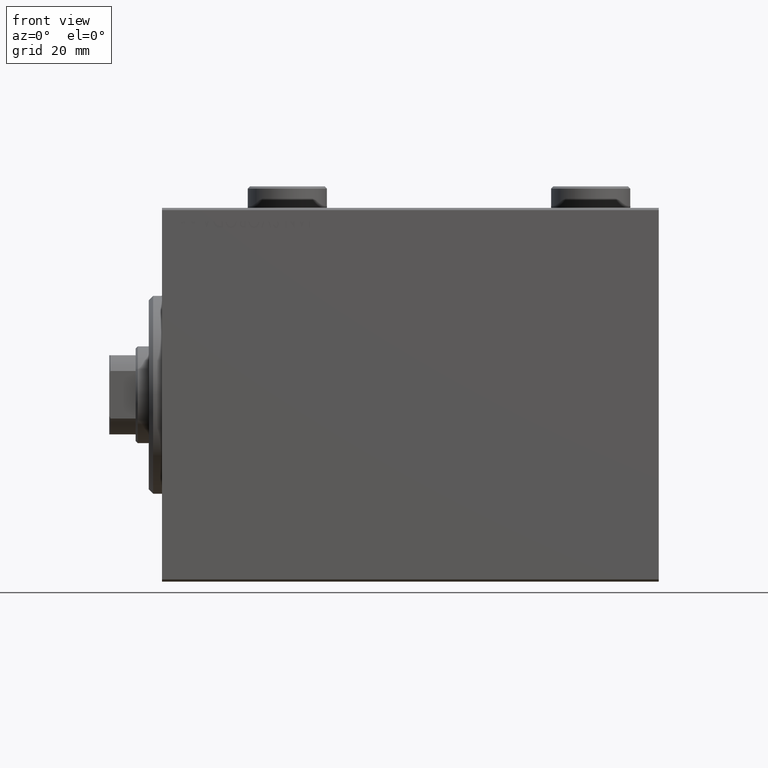
[diagram: clean part render]
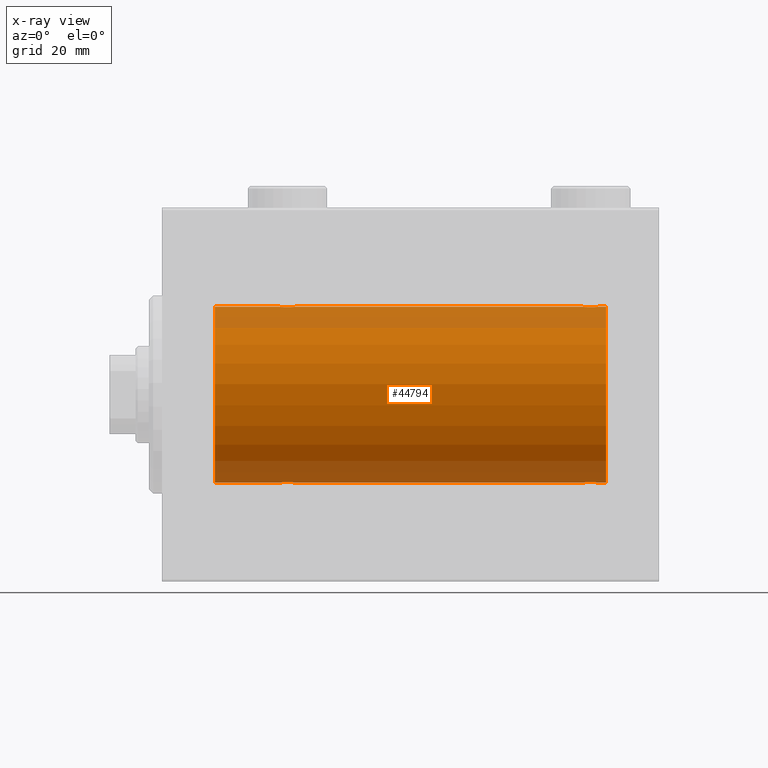
[diagram: x-ray — body ghosted, one internal face saturated and labeled with its STEP entity id]
A machine part, front view, then the same camera in x-ray: the body is ghosted and one INTERNAL B-rep face — a face not visible from any outside direction — is saturated and labeled: STEP entity #44794.
In plain terms, the highlighted cylindrical surface (partial cylindrical patch) has radius 20 mm, axis along (-1, -0, -0).
Its self-contained STEP definition (entity closure, byte-faithful):
#22 = CARTESIAN_POINT ( 'NONE',  ( 99.50000000000000000, 2.449293582762473501E-15, -20.00000000000000000 ) ) ;
#229 = CARTESIAN_POINT ( 'NONE',  ( 26.90225308445269903, -1.230936344679278260, -19.96293863536309132 ) ) ;
#462 = CARTESIAN_POINT ( 'NONE',  ( 30.50000000000000000, 2.449293582768389958E-15, -20.00000000000000000 ) ) ;
#695 = CARTESIAN_POINT ( 'NONE',  ( 28.63365196142448355, -1.999898234284062992, -19.89975896996866211 ) ) ;
#909 = CARTESIAN_POINT ( 'NONE',  ( 27.61420923329272981, -1.797933656607917596, -19.91908554465558367 ) ) ;
#975 = CARTESIAN_POINT ( 'NONE',  ( 101.0000000000000000, 2.449293598294706513E-15, -20.00000000000000000 ) ) ;
#1464 = LINE ( 'NONE', #11155, #35115 ) ;
#1502 = CARTESIAN_POINT ( 'NONE',  ( 99.50000000000000000, 9.984436361108698300E-16, 20.00000000000000000 ) ) ;
#1629 = CARTESIAN_POINT ( 'NONE',  ( 101.0000000000000000, 0.000000000000000000, 0.000000000000000000 ) ) ;
#1729 = CARTESIAN_POINT ( 'NONE',  ( 99.44679484191794927, -0.5270924491156651071, 19.99450181871975829 ) ) ;
#1742 = CYLINDRICAL_SURFACE ( 'NONE', #36111, 20.00000000000000000 ) ;
#1784 = CARTESIAN_POINT ( 'NONE',  ( 95.50000000000000000, -1.207436508668459186E-14, -20.00000000000000000 ) ) ;
#1834 = CARTESIAN_POINT ( 'NONE',  ( 29.71805419472152110, -1.591668229360196252, 19.93669678979812332 ) ) ;
#2010 = DIRECTION ( 'NONE',  ( -1.000000000000000000, -0.000000000000000000, -0.000000000000000000 ) ) ;
#2021 = CARTESIAN_POINT ( 'NONE',  ( 96.98351467081093347, -1.936551476643015191, -19.90603968831098669 ) ) ;
#2244 = CARTESIAN_POINT ( 'NONE',  ( 96.28194580527851087, -1.591668229360199804, -19.93669678979812687 ) ) ;
#2251 = CARTESIAN_POINT ( 'NONE',  ( 11.99999999999999645, 0.000000000000000000, 0.000000000000000000 ) ) ;
#2455 = CARTESIAN_POINT ( 'NONE',  ( 98.14630673924646942, -1.897222639860602245, -19.90987429971496425 ) ) ;
#3133 = CARTESIAN_POINT ( 'NONE',  ( 99.50000000000000000, 9.984436361108698300E-16, 20.00000000000000000 ) ) ;
#3146 = EDGE_CURVE ( 'NONE', #9792, #35832, #29102, .T. ) ;
#4135 = CARTESIAN_POINT ( 'NONE',  ( 28.76358144091416236, -1.986835489085814199, -19.90108393514801222 ) ) ;
#4358 = CARTESIAN_POINT ( 'NONE',  ( 29.82306668919470383, -1.505486175075772870, -19.94347168299867334 ) ) ;
#5273 = CARTESIAN_POINT ( 'NONE',  ( 101.0000000000000000, 0.000000000000000000, 20.00000000000000000 ) ) ;
#5633 = VECTOR ( 'NONE', #31208, 1000.000000000000000 ) ;
#5650 = CARTESIAN_POINT ( 'NONE',  ( 101.0000000000000000, 0.000000000000000000, 0.000000000000000000 ) ) ;
#5692 = CARTESIAN_POINT ( 'NONE',  ( 99.49999999999998579, -0.2610801504281911045, -19.99999999999999645 ) ) ;
#5735 = CARTESIAN_POINT ( 'NONE',  ( 30.09774691554730097, -1.230936344679278482, 19.96293863536309132 ) ) ;
#5961 = CARTESIAN_POINT ( 'NONE',  ( 29.50067219139244656, -1.736582545981375292, 19.92459705242981371 ) ) ;
#6288 = VERTEX_POINT ( 'NONE', #975 ) ;
#7135 = CARTESIAN_POINT ( 'NONE',  ( 26.55320515808203297, -0.5270924491156698810, -19.99450181871976184 ) ) ;
#7356 = AXIS2_PLACEMENT_3D ( 'NONE', #2251, #20220, #7454 ) ;
#7454 = DIRECTION ( 'NONE',  ( 0.000000000000000000, 0.000000000000000000, 1.000000000000000000 ) ) ;
#7585 = CARTESIAN_POINT ( 'NONE',  ( 29.72028945794465571, -1.589957321664208223, -19.93683391378736047 ) ) ;
#8077 = DIRECTION ( 'NONE',  ( 0.000000000000000000, 0.000000000000000000, 1.000000000000000000 ) ) ;
#8500 = CARTESIAN_POINT ( 'NONE',  ( 27.98076487864722495, -1.935816449315125087, 19.90611141657401362 ) ) ;
#8631 = CARTESIAN_POINT ( 'NONE',  ( 98.50067219139243946, -1.736582545981368852, 19.92459705242980661 ) ) ;
#8689 = CARTESIAN_POINT ( 'NONE',  ( 95.75313023696931225, -1.008108445278694587, -19.97602680192586888 ) ) ;
#8701 = CARTESIAN_POINT ( 'NONE',  ( 30.50000000000000000, 2.449293582768389958E-15, -20.00000000000000000 ) ) ;
#8726 = LINE ( 'NONE', #5273, #42598 ) ;
#8862 = CARTESIAN_POINT ( 'NONE',  ( 98.71805419472153176, -1.591668229360190034, 19.93669678979813042 ) ) ;
#8920 = CARTESIAN_POINT ( 'NONE',  ( 99.44755062882506991, -0.5243189001514980685, -19.99457699142850231 ) ) ;
#8959 = CARTESIAN_POINT ( 'NONE',  ( 27.85369326075355545, -1.897222639860597360, 19.90987429971497491 ) ) ;
#9220 = VERTEX_POINT ( 'NONE', #22 ) ;
#9303 = EDGE_CURVE ( 'NONE', #32744, #35832, #19862, .T. ) ;
#9306 = CARTESIAN_POINT ( 'NONE',  ( 97.23641855908584830, -1.986835489085812867, 19.90108393514801577 ) ) ;
#9409 = CARTESIAN_POINT ( 'NONE',  ( 29.38579076670729151, -1.797933656607919817, 19.91908554465558367 ) ) ;
#9792 = VERTEX_POINT ( 'NONE', #16515 ) ;
#10083 = B_SPLINE_CURVE_WITH_KNOTS ( 'NONE', 3,
 ( #43737, #5692, #8920, #44414, #30158, #23228, #12625, #12163, #33378, #2455, #12837, #19994, #19079, #16306, #34059, #2021, #30375, #26700, #26242, #2244, #23003, #40292, #8689, #33150, #40053, #1784 ),
 .UNSPECIFIED., .F., .F.,
 ( 4, 2, 2, 2, 2, 2, 2, 2, 2, 2, 2, 2, 4 ),
 ( 0.006256819553329824070, 0.007038738568778795009, 0.007820657584227765080, 0.008211617091952250549, 0.008602576599676736019, 0.008993536107401221488, 0.009384495615125706958, 0.009775455122850190692, 0.01016641463057467790, 0.01055737413829916163, 0.01094833364602364884, 0.01173025266147261630, 0.01251217167692158724 ),
 .UNSPECIFIED. ) ;
#10127 = EDGE_CURVE ( 'NONE', #29195, #25425, #34221, .T. ) ;
#11054 = CARTESIAN_POINT ( 'NONE',  ( 30.24825913460018612, -1.005710574260838985, -19.97614991974274190 ) ) ;
#11155 = CARTESIAN_POINT ( 'NONE',  ( 101.0000000000000000, 2.449293598294706513E-15, -20.00000000000000000 ) ) ;
#11875 = CARTESIAN_POINT ( 'NONE',  ( 98.01648532918906653, -1.936551476643001202, 19.90603968831098669 ) ) ;
#12001 = DIRECTION ( 'NONE',  ( -1.000000000000000000, 0.000000000000000000, 0.000000000000000000 ) ) ;
#12163 = CARTESIAN_POINT ( 'NONE',  ( 98.50306556339604924, -1.735203193119900122, -19.92471783160911158 ) ) ;
#12165 = ORIENTED_EDGE ( 'NONE', *, *, #45140, .F. ) ;
#12341 = CARTESIAN_POINT ( 'NONE',  ( 95.55244937117491588, -0.5243189001515019543, 19.99457699142849876 ) ) ;
#12565 = CARTESIAN_POINT ( 'NONE',  ( 99.09774691554729031, -1.230936344679272043, 19.96293863536309487 ) ) ;
#12625 = CARTESIAN_POINT ( 'NONE',  ( 98.72028945794467347, -1.589957321664213330, -19.93683391378736758 ) ) ;
#12665 = CARTESIAN_POINT ( 'NONE',  ( 30.44679484191797414, -0.5270924491156706582, 19.99450181871975829 ) ) ;
#12837 = CARTESIAN_POINT ( 'NONE',  ( 98.01923512135277861, -1.935816449315129750, -19.90611141657401362 ) ) ;
#12885 = CARTESIAN_POINT ( 'NONE',  ( 30.49999999999999289, -0.2644051013330969702, 20.00000000000000711 ) ) ;
#13848 = EDGE_CURVE ( 'NONE', #32744, #21257, #8726, .T. ) ;
#14292 = CARTESIAN_POINT ( 'NONE',  ( 26.50000000000000355, -3.809869420541414000E-15, -20.00000000000000000 ) ) ;
#14478 = EDGE_CURVE ( 'NONE', #6288, #9220, #27831, .T. ) ;
#14659 = B_SPLINE_CURVE_WITH_KNOTS ( 'NONE', 3,
 ( #462, #39187, #42644, #11054, #29044, #4358, #7585, #21215, #38724, #21668, #32279, #4135, #695, #14752, #24674, #18426, #28372, #909, #28832, #32049, #31822, #229, #32503, #7135, #25137, #14292 ),
 .UNSPECIFIED., .F., .F.,
 ( 4, 2, 2, 2, 2, 2, 2, 2, 2, 2, 2, 2, 4 ),
 ( 0.006256819553329842284, 0.007038738568778818427, 0.007820657584227792836, 0.008211617091952278305, 0.008602576599676762040, 0.008993536107401245774, 0.009384495615125729509, 0.009775455122850213244, 0.01016641463057469871, 0.01055737413829918071, 0.01094833364602366618, 0.01173025266147263365, 0.01251217167692159939 ),
 .UNSPECIFIED. ) ;
#14752 = CARTESIAN_POINT ( 'NONE',  ( 28.36941128289166159, -2.000100592782553921, -19.89973863218036598 ) ) ;
#15342 = CARTESIAN_POINT ( 'NONE',  ( 95.50000000000000000, -1.553188236289650144E-23, 20.00000000000000000 ) ) ;
#15454 = EDGE_CURVE ( 'NONE', #34003, #21257, #36107, .T. ) ;
#15898 = CARTESIAN_POINT ( 'NONE',  ( 28.23641855908585541, -1.986835489085814643, 19.90108393514801222 ) ) ;
#15946 = ORIENTED_EDGE ( 'NONE', *, *, #13848, .F. ) ;
#16126 = CARTESIAN_POINT ( 'NONE',  ( 26.90058475115969827, -1.228758402364236391, 19.96307487248084556 ) ) ;
#16306 = CARTESIAN_POINT ( 'NONE',  ( 97.36941128289166159, -2.000100592782561471, -19.89973863218036243 ) ) ;
#16346 = CARTESIAN_POINT ( 'NONE',  ( 29.01648532918905943, -1.936551476643006753, 19.90603968831098669 ) ) ;
#16510 = LINE ( 'NONE', #37277, #43947 ) ;
#16515 = CARTESIAN_POINT ( 'NONE',  ( 95.50000000000000000, -1.553188236289650144E-23, 20.00000000000000000 ) ) ;
#17138 = CARTESIAN_POINT ( 'NONE',  ( 101.0000000000000000, 0.000000000000000000, 20.00000000000000000 ) ) ;
#18426 = CARTESIAN_POINT ( 'NONE',  ( 27.98351467081095123, -1.936551476643005198, -19.90603968831098314 ) ) ;
#18624 = CARTESIAN_POINT ( 'NONE',  ( 26.50000000000000355, -3.809869420541414000E-15, -20.00000000000000000 ) ) ;
#18739 = VECTOR ( 'NONE', #25411, 1000.000000000000000 ) ;
#18792 = CARTESIAN_POINT ( 'NONE',  ( 97.63058871710833841, -2.000100592782551256, 19.89973863218035888 ) ) ;
#19079 = CARTESIAN_POINT ( 'NONE',  ( 97.63365196142450486, -1.999898234284069432, -19.89975896996866211 ) ) ;
#19150 = CIRCLE ( 'NONE', #44902, 20.00000000000000000 ) ;
#19354 = CARTESIAN_POINT ( 'NONE',  ( 28.76077256031567586, -1.987205673487810298, 19.90104673894210663 ) ) ;
#19481 = CARTESIAN_POINT ( 'NONE',  ( 96.98076487864724982, -1.935816449315123977, 19.90611141657402072 ) ) ;
#19587 = CARTESIAN_POINT ( 'NONE',  ( 27.27971054205535850, -1.589957321664211998, 19.93683391378736047 ) ) ;
#19813 = CARTESIAN_POINT ( 'NONE',  ( 30.50000000000000000, -4.014971335008767791E-15, 20.00000000000000000 ) ) ;
#19862 = B_SPLINE_CURVE_WITH_KNOTS ( 'NONE', 3,
 ( #41009, #44242, #20036, #40564, #16126, #34103, #19587, #37551, #33658, #8959, #8500, #15898, #44018, #23270, #19354, #16346, #37331, #9409, #5961, #1834, #36660, #5735, #40339, #12665, #12885, #19813 ),
 .UNSPECIFIED., .F., .F.,
 ( 4, 2, 2, 2, 2, 2, 2, 2, 2, 2, 2, 2, 4 ),
 ( 0.006256819553329811059, 0.007038738568778783733, 0.007820657584227756406, 0.008211617091952238406, 0.008602576599676722141, 0.008993536107401204141, 0.009384495615125686141, 0.009775455122850168141, 0.01016641463057465014, 0.01055737413829913214, 0.01094833364602361414, 0.01173025266147257814, 0.01251217167692154214 ),
 .UNSPECIFIED. ) ;
#19994 = CARTESIAN_POINT ( 'NONE',  ( 97.76358144091416591, -1.986835489085820639, -19.90108393514801222 ) ) ;
#20036 = CARTESIAN_POINT ( 'NONE',  ( 26.55244937117492299, -0.5243189001515023984, 19.99457699142850586 ) ) ;
#20048 = ORIENTED_EDGE ( 'NONE', *, *, #26680, .T. ) ;
#20220 = DIRECTION ( 'NONE',  ( -1.000000000000000000, 0.000000000000000000, 0.000000000000000000 ) ) ;
#20326 = EDGE_CURVE ( 'NONE', #9220, #35760, #10083, .T. ) ;
#21123 = DIRECTION ( 'NONE',  ( -1.000000000000000000, -0.000000000000000000, -0.000000000000000000 ) ) ;
#21215 = CARTESIAN_POINT ( 'NONE',  ( 29.50306556339602437, -1.735203193119894349, -19.92471783160910803 ) ) ;
#21257 = VERTEX_POINT ( 'NONE', #42842 ) ;
#21668 = CARTESIAN_POINT ( 'NONE',  ( 29.14630673924643744, -1.897222639860594029, -19.90987429971496780 ) ) ;
#21978 = VECTOR ( 'NONE', #21123, 1000.000000000000000 ) ;
#22446 = DIRECTION ( 'NONE',  ( -1.000000000000000000, -0.000000000000000000, -0.000000000000000000 ) ) ;
#22485 = CARTESIAN_POINT ( 'NONE',  ( 99.24686976303073038, -1.008108445278681931, 19.97602680192586178 ) ) ;
#23003 = CARTESIAN_POINT ( 'NONE',  ( 96.17903093152715144, -1.507328959728500006, -19.94333197382386302 ) ) ;
#23228 = CARTESIAN_POINT ( 'NONE',  ( 98.82306668919471804, -1.505486175075774646, -19.94347168299867334 ) ) ;
#23270 = CARTESIAN_POINT ( 'NONE',  ( 28.63058871710834552, -2.000100592782553921, 19.89973863218035888 ) ) ;
#23316 = ORIENTED_EDGE ( 'NONE', *, *, #3146, .F. ) ;
#23769 = EDGE_LOOP ( 'NONE', ( #12165, #44738, #44952, #24185, #35600, #20048, #42250, #15946, #40823, #23316, #36192, #28270 ) ) ;
#24185 = ORIENTED_EDGE ( 'NONE', *, *, #28281, .T. ) ;
#24674 = CARTESIAN_POINT ( 'NONE',  ( 28.23922743968432059, -1.987205673487808966, -19.90104673894211018 ) ) ;
#25137 = CARTESIAN_POINT ( 'NONE',  ( 26.50000000000001066, -0.2644051013331030209, -20.00000000000000355 ) ) ;
#25411 = DIRECTION ( 'NONE',  ( -1.000000000000000000, -0.000000000000000000, -0.000000000000000000 ) ) ;
#25425 = VERTEX_POINT ( 'NONE', #3133 ) ;
#26178 = CARTESIAN_POINT ( 'NONE',  ( 95.50000000000001421, -0.2610801504281927699, 20.00000000000000355 ) ) ;
#26242 = CARTESIAN_POINT ( 'NONE',  ( 96.49932780860756054, -1.736582545981379289, -19.92459705242981016 ) ) ;
#26680 = EDGE_CURVE ( 'NONE', #42123, #34003, #1464, .T. ) ;
#26700 = CARTESIAN_POINT ( 'NONE',  ( 96.61420923329271204, -1.797933656607926700, -19.91908554465557302 ) ) ;
#26733 = DIRECTION ( 'NONE',  ( -1.000000000000000000, -0.000000000000000000, -0.000000000000000000 ) ) ;
#26864 = CARTESIAN_POINT ( 'NONE',  ( 96.49693443660399339, -1.735203193119890352, 19.92471783160910803 ) ) ;
#26883 = DIRECTION ( 'NONE',  ( 0.000000000000000000, 0.000000000000000000, 1.000000000000000000 ) ) ;
#27831 = LINE ( 'NONE', #28058, #21978 ) ;
#28058 = CARTESIAN_POINT ( 'NONE',  ( 101.0000000000000000, 2.449293598294706513E-15, -20.00000000000000000 ) ) ;
#28270 = ORIENTED_EDGE ( 'NONE', *, *, #10127, .F. ) ;
#28281 = EDGE_CURVE ( 'NONE', #35760, #35688, #16510, .T. ) ;
#28372 = CARTESIAN_POINT ( 'NONE',  ( 27.85651471266959334, -1.898187925611338533, -19.90978194174746818 ) ) ;
#28832 = CARTESIAN_POINT ( 'NONE',  ( 27.49932780860757475, -1.736582545981376180, -19.92459705242981371 ) ) ;
#29044 = CARTESIAN_POINT ( 'NONE',  ( 30.09941524884030173, -1.228758402364235502, -19.96307487248084911 ) ) ;
#29102 = LINE ( 'NONE', #29329, #18739 ) ;
#29195 = VERTEX_POINT ( 'NONE', #38982 ) ;
#29329 = CARTESIAN_POINT ( 'NONE',  ( 101.0000000000000000, 0.000000000000000000, 20.00000000000000000 ) ) ;
#30114 = FACE_OUTER_BOUND ( 'NONE', #23769, .T. ) ;
#30158 = CARTESIAN_POINT ( 'NONE',  ( 99.09941524884030173, -1.228758402364235724, -19.96307487248084556 ) ) ;
#30335 = DIRECTION ( 'NONE',  ( -1.000000000000000000, -0.000000000000000000, -0.000000000000000000 ) ) ;
#30361 = EDGE_CURVE ( 'NONE', #9792, #25425, #36959, .T. ) ;
#30375 = CARTESIAN_POINT ( 'NONE',  ( 96.85651471266960755, -1.898187925611348081, -19.90978194174746818 ) ) ;
#30386 = CARTESIAN_POINT ( 'NONE',  ( 30.50000000000000000, -4.014971335008767791E-15, 20.00000000000000000 ) ) ;
#31208 = DIRECTION ( 'NONE',  ( -1.000000000000000000, -0.000000000000000000, -0.000000000000000000 ) ) ;
#31822 = CARTESIAN_POINT ( 'NONE',  ( 27.17903093152710525, -1.507328959728492457, -19.94333197382385592 ) ) ;
#32049 = CARTESIAN_POINT ( 'NONE',  ( 27.28194580527848601, -1.591668229360197140, -19.93669678979812332 ) ) ;
#32279 = CARTESIAN_POINT ( 'NONE',  ( 29.01923512135276795, -1.935816449315124643, -19.90611141657401717 ) ) ;
#32503 = CARTESIAN_POINT ( 'NONE',  ( 26.75313023696928738, -1.008108445278687704, -19.97602680192586533 ) ) ;
#32744 = VERTEX_POINT ( 'NONE', #40521 ) ;
#32931 = CARTESIAN_POINT ( 'NONE',  ( 95.50000000000000000, -1.207436508668459186E-14, -20.00000000000000000 ) ) ;
#33092 = CARTESIAN_POINT ( 'NONE',  ( 98.14348528733043509, -1.898187925611334315, 19.90978194174746818 ) ) ;
#33150 = CARTESIAN_POINT ( 'NONE',  ( 95.55320515808205073, -0.5270924491156777636, -19.99450181871976540 ) ) ;
#33324 = CARTESIAN_POINT ( 'NONE',  ( 98.82096906847290541, -1.507328959728488238, 19.94333197382385947 ) ) ;
#33378 = CARTESIAN_POINT ( 'NONE',  ( 98.38829437207090223, -1.796691196322323103, -19.91919800395357143 ) ) ;
#33552 = CARTESIAN_POINT ( 'NONE',  ( 98.38579076670728796, -1.797933656607910713, 19.91908554465557657 ) ) ;
#33658 = CARTESIAN_POINT ( 'NONE',  ( 27.61170562792909422, -1.796691196322319994, 19.91919800395357143 ) ) ;
#34003 = VERTEX_POINT ( 'NONE', #38714 ) ;
#34059 = CARTESIAN_POINT ( 'NONE',  ( 97.23922743968432769, -1.987205673487818514, -19.90104673894210663 ) ) ;
#34103 = CARTESIAN_POINT ( 'NONE',  ( 27.17693331080528907, -1.505486175075773758, 19.94347168299867690 ) ) ;
#34221 = LINE ( 'NONE', #17138, #5633 ) ;
#34686 = EDGE_CURVE ( 'NONE', #35688, #42123, #14659, .T. ) ;
#35115 = VECTOR ( 'NONE', #22446, 1000.000000000000000 ) ;
#35600 = ORIENTED_EDGE ( 'NONE', *, *, #34686, .T. ) ;
#35688 = VERTEX_POINT ( 'NONE', #8701 ) ;
#35760 = VERTEX_POINT ( 'NONE', #32931 ) ;
#35832 = VERTEX_POINT ( 'NONE', #30386 ) ;
#36107 = CIRCLE ( 'NONE', #7356, 20.00000000000000000 ) ;
#36111 = AXIS2_PLACEMENT_3D ( 'NONE', #5650, #30335, #26883 ) ;
#36192 = ORIENTED_EDGE ( 'NONE', *, *, #30361, .T. ) ;
#36321 = CARTESIAN_POINT ( 'NONE',  ( 97.36634803857555198, -1.999898234284061216, 19.89975896996866922 ) ) ;
#36557 = CARTESIAN_POINT ( 'NONE',  ( 96.27971054205538337, -1.589957321664204448, 19.93683391378736403 ) ) ;
#36660 = CARTESIAN_POINT ( 'NONE',  ( 29.82096906847289119, -1.507328959728493567, 19.94333197382385592 ) ) ;
#36959 = B_SPLINE_CURVE_WITH_KNOTS ( 'NONE', 3,
 ( #15342, #26178, #12341, #43913, #40462, #39998, #36557, #26864, #40234, #40904, #19481, #9306, #36321, #18792, #43458, #11875, #33092, #33552, #8631, #8862, #33324, #12565, #22485, #1729, #40683, #1502 ),
 .UNSPECIFIED., .F., .F.,
 ( 4, 2, 2, 2, 2, 2, 2, 2, 2, 2, 2, 2, 4 ),
 ( 0.006256819553329836213, 0.007038738568778784600, 0.007820657584227733855, 0.008211617091952222794, 0.008602576599676711733, 0.008993536107401198937, 0.009384495615125687876, 0.009775455122850176815, 0.01016641463057466402, 0.01055737413829915296, 0.01094833364602364190, 0.01173025266147261630, 0.01251217167692159418 ),
 .UNSPECIFIED. ) ;
#37277 = CARTESIAN_POINT ( 'NONE',  ( 101.0000000000000000, 2.449293598294706513E-15, -20.00000000000000000 ) ) ;
#37331 = CARTESIAN_POINT ( 'NONE',  ( 29.14348528733041377, -1.898187925611340088, 19.90978194174746818 ) ) ;
#37551 = CARTESIAN_POINT ( 'NONE',  ( 27.49693443660397918, -1.735203193119897902, 19.92471783160911158 ) ) ;
#38714 = CARTESIAN_POINT ( 'NONE',  ( 11.99999999999999645, 2.449293598294706513E-15, -20.00000000000000000 ) ) ;
#38724 = CARTESIAN_POINT ( 'NONE',  ( 29.38829437207091999, -1.796691196322316664, -19.91919800395357143 ) ) ;
#38982 = CARTESIAN_POINT ( 'NONE',  ( 101.0000000000000000, 0.000000000000000000, 20.00000000000000000 ) ) ;
#39187 = CARTESIAN_POINT ( 'NONE',  ( 30.49999999999999645, -0.2610801504281900498, -19.99999999999999645 ) ) ;
#39998 = CARTESIAN_POINT ( 'NONE',  ( 96.17693331080533881, -1.505486175075777311, 19.94347168299868045 ) ) ;
#40053 = CARTESIAN_POINT ( 'NONE',  ( 95.50000000000002842, -0.2644051013331136790, -20.00000000000000355 ) ) ;
#40234 = CARTESIAN_POINT ( 'NONE',  ( 96.61170562792906935, -1.796691196322320216, 19.91919800395356788 ) ) ;
#40292 = CARTESIAN_POINT ( 'NONE',  ( 95.90225308445270969, -1.230936344679285144, -19.96293863536309843 ) ) ;
#40339 = CARTESIAN_POINT ( 'NONE',  ( 30.24686976303072328, -1.008108445278687926, 19.97602680192586888 ) ) ;
#40462 = CARTESIAN_POINT ( 'NONE',  ( 95.90058475115969827, -1.228758402364240609, 19.96307487248084911 ) ) ;
#40521 = CARTESIAN_POINT ( 'NONE',  ( 26.50000000000000355, -1.552596590610734385E-23, 20.00000000000000000 ) ) ;
#40564 = CARTESIAN_POINT ( 'NONE',  ( 26.75174086539981033, -1.005710574260841206, 19.97614991974274190 ) ) ;
#40683 = CARTESIAN_POINT ( 'NONE',  ( 99.50000000000000000, -0.2644051013330985245, 19.99999999999999645 ) ) ;
#40823 = ORIENTED_EDGE ( 'NONE', *, *, #9303, .T. ) ;
#40904 = CARTESIAN_POINT ( 'NONE',  ( 96.85369326075360163, -1.897222639860597360, 19.90987429971497491 ) ) ;
#41009 = CARTESIAN_POINT ( 'NONE',  ( 26.50000000000000355, -1.552596590610734385E-23, 20.00000000000000000 ) ) ;
#42123 = VERTEX_POINT ( 'NONE', #18624 ) ;
#42250 = ORIENTED_EDGE ( 'NONE', *, *, #15454, .T. ) ;
#42598 = VECTOR ( 'NONE', #26733, 1000.000000000000000 ) ;
#42644 = CARTESIAN_POINT ( 'NONE',  ( 30.44755062882508412, -0.5243189001514996228, -19.99457699142849876 ) ) ;
#42842 = CARTESIAN_POINT ( 'NONE',  ( 11.99999999999999645, 0.000000000000000000, 20.00000000000000000 ) ) ;
#43458 = CARTESIAN_POINT ( 'NONE',  ( 97.76077256031565810, -1.987205673487806967, 19.90104673894210663 ) ) ;
#43737 = CARTESIAN_POINT ( 'NONE',  ( 99.50000000000000000, 2.449293582762473501E-15, -20.00000000000000000 ) ) ;
#43913 = CARTESIAN_POINT ( 'NONE',  ( 95.75174086539981033, -1.005710574260841872, 19.97614991974274190 ) ) ;
#43947 = VECTOR ( 'NONE', #2010, 1000.000000000000000 ) ;
#44018 = CARTESIAN_POINT ( 'NONE',  ( 28.36634803857552001, -1.999898234284063436, 19.89975896996866211 ) ) ;
#44242 = CARTESIAN_POINT ( 'NONE',  ( 26.50000000000000711, -0.2610801504281929919, 20.00000000000000000 ) ) ;
#44414 = CARTESIAN_POINT ( 'NONE',  ( 99.24825913460016125, -1.005710574260839651, -19.97614991974274901 ) ) ;
#44738 = ORIENTED_EDGE ( 'NONE', *, *, #14478, .T. ) ;
#44794 = ADVANCED_FACE ( 'NONE', ( #30114 ), #1742, .F. ) ;
#44902 = AXIS2_PLACEMENT_3D ( 'NONE', #1629, #12001, #8077 ) ;
#44952 = ORIENTED_EDGE ( 'NONE', *, *, #20326, .T. ) ;
#45140 = EDGE_CURVE ( 'NONE', #6288, #29195, #19150, .T. ) ;